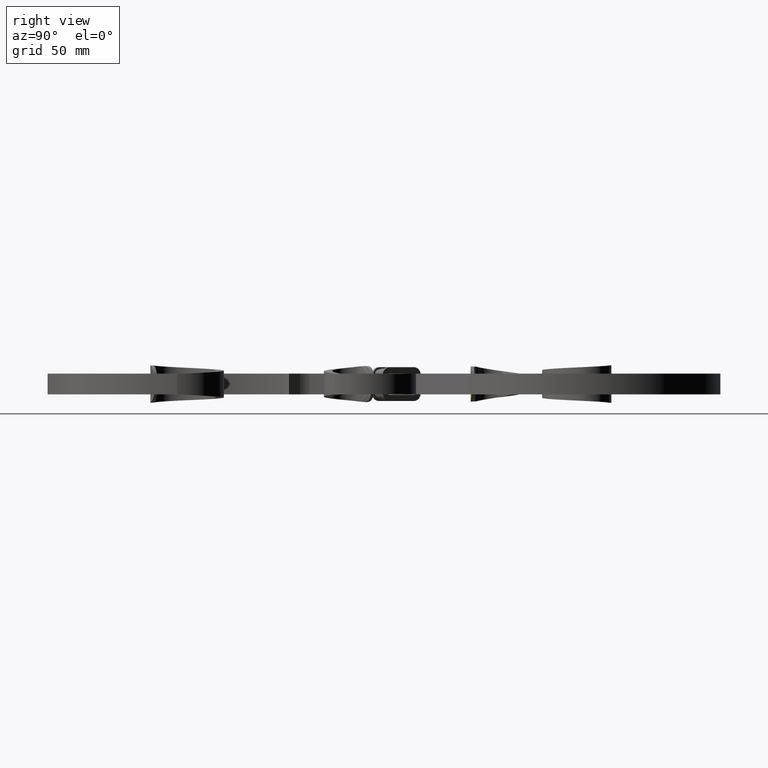
[diagram: clean part render]
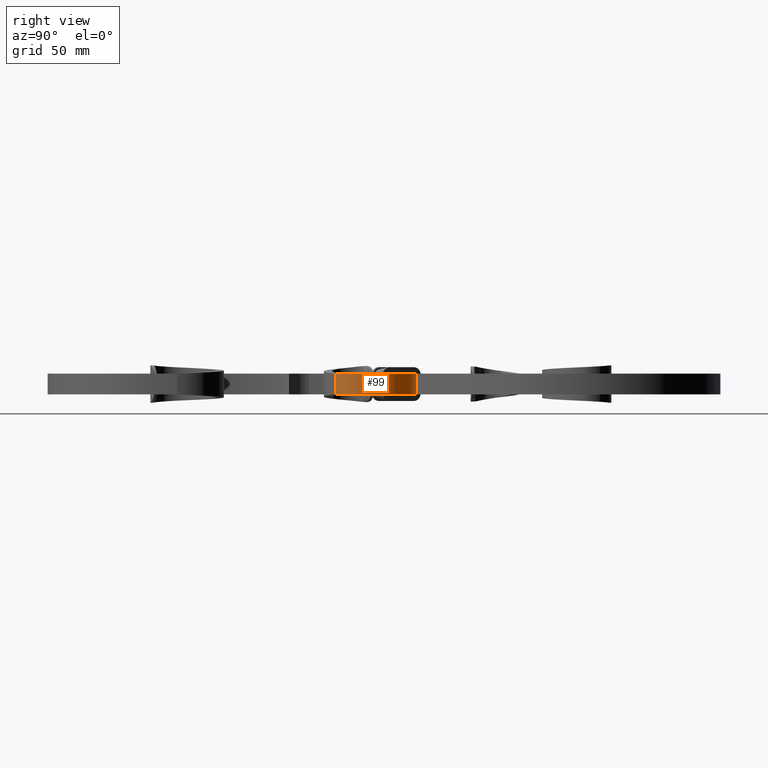
[diagram: same view with one face highlighted and labeled with its STEP entity id]
A machine part, right view. The second image highlights one B-rep face of the part: STEP entity #99.
In plain terms, the highlighted cylindrical surface (partial cylindrical patch) has radius 40 mm, axis along (-0, -0, -1).
Its self-contained STEP definition (entity closure, byte-faithful):
#99 = ADVANCED_FACE ( 'NONE', ( #6804 ), #10783, .T. ) ;
#232 = DIRECTION ( 'NONE',  ( 0.000000000000000000, 0.000000000000000000, 1.000000000000000000 ) ) ;
#725 = LINE ( 'NONE', #3024, #8320 ) ;
#1157 = DIRECTION ( 'NONE',  ( -0.2342445080894065557, 0.9721777154563623347, 0.000000000000000000 ) ) ;
#1402 = DIRECTION ( 'NONE',  ( -1.000000000000000000, 0.000000000000000000, 0.000000000000000000 ) ) ;
#1853 = CARTESIAN_POINT ( 'NONE',  ( 52.08966246934093647, -15.37670576422456747, -8.000000000000000000 ) ) ;
#2860 = CARTESIAN_POINT ( 'NONE',  ( 42.71988214576462184, 23.51040285402995167, 8.000000000000000000 ) ) ;
#3024 = CARTESIAN_POINT ( 'NONE',  ( 85.25162135269434316, -37.74374586833268097, 8.000000000000000000 ) ) ;
#3992 = EDGE_CURVE ( 'NONE', #12624, #12060, #18705, .T. ) ;
#4108 = DIRECTION ( 'NONE',  ( -0.000000000000000000, -0.000000000000000000, -1.000000000000000000 ) ) ;
#5565 = ORIENTED_EDGE ( 'NONE', *, *, #8906, .F. ) ;
#5797 = DIRECTION ( 'NONE',  ( 0.000000000000000000, 0.000000000000000000, 1.000000000000000000 ) ) ;
#6605 = EDGE_CURVE ( 'NONE', #12060, #9508, #17518, .T. ) ;
#6804 = FACE_OUTER_BOUND ( 'NONE', #11598, .T. ) ;
#7031 = CARTESIAN_POINT ( 'NONE',  ( 85.25162135269434316, -37.74374586833268097, -8.000000000000000000 ) ) ;
#7035 = ORIENTED_EDGE ( 'NONE', *, *, #8031, .F. ) ;
#7323 = DIRECTION ( 'NONE',  ( -0.000000000000000000, -0.000000000000000000, -1.000000000000000000 ) ) ;
#7408 = ORIENTED_EDGE ( 'NONE', *, *, #6605, .T. ) ;
#8031 = EDGE_CURVE ( 'NONE', #19036, #9508, #725, .T. ) ;
#8320 = VECTOR ( 'NONE', #232, 1000.000000000000000 ) ;
#8906 = EDGE_CURVE ( 'NONE', #12624, #19036, #12430, .T. ) ;
#9508 = VERTEX_POINT ( 'NONE', #17516 ) ;
#10166 = CARTESIAN_POINT ( 'NONE',  ( 42.71988214576460763, 23.51040285402995877, 8.000000000000000000 ) ) ;
#10575 = AXIS2_PLACEMENT_3D ( 'NONE', #17119, #4108, #1157 ) ;
#10783 = CYLINDRICAL_SURFACE ( 'NONE', #17089, 40.00000000000003553 ) ;
#11130 = ORIENTED_EDGE ( 'NONE', *, *, #3992, .T. ) ;
#11576 = CARTESIAN_POINT ( 'NONE',  ( 52.08966246934093647, -15.37670576422456747, 0.000000000000000000 ) ) ;
#11598 = EDGE_LOOP ( 'NONE', ( #7408, #7035, #5565, #11130 ) ) ;
#12044 = AXIS2_PLACEMENT_3D ( 'NONE', #1853, #15145, #12171 ) ;
#12060 = VERTEX_POINT ( 'NONE', #10166 ) ;
#12143 = CARTESIAN_POINT ( 'NONE',  ( 42.71988214576460763, 23.51040285402995877, -8.000000000000000000 ) ) ;
#12171 = DIRECTION ( 'NONE',  ( -0.2342445080894065557, 0.9721777154563623347, 0.000000000000000000 ) ) ;
#12430 = CIRCLE ( 'NONE', #12044, 40.00000000000004263 ) ;
#12624 = VERTEX_POINT ( 'NONE', #12143 ) ;
#15145 = DIRECTION ( 'NONE',  ( -0.000000000000000000, -0.000000000000000000, -1.000000000000000000 ) ) ;
#16412 = VECTOR ( 'NONE', #5797, 1000.000000000000000 ) ;
#17089 = AXIS2_PLACEMENT_3D ( 'NONE', #11576, #7323, #1402 ) ;
#17119 = CARTESIAN_POINT ( 'NONE',  ( 52.08966246934093647, -15.37670576422456747, 8.000000000000000000 ) ) ;
#17516 = CARTESIAN_POINT ( 'NONE',  ( 85.25162135269434316, -37.74374586833268097, 8.000000000000000000 ) ) ;
#17518 = CIRCLE ( 'NONE', #10575, 40.00000000000004263 ) ;
#18705 = LINE ( 'NONE', #2860, #16412 ) ;
#19036 = VERTEX_POINT ( 'NONE', #7031 ) ;